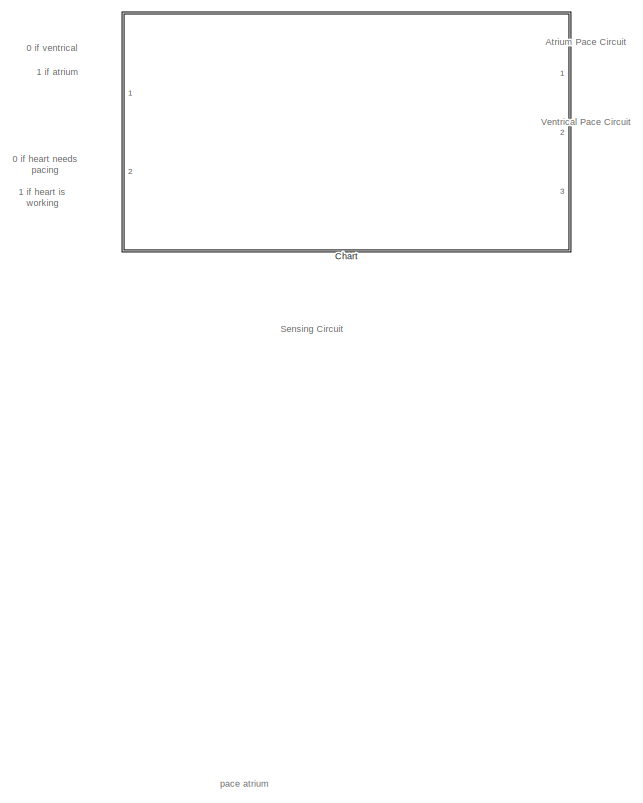
[diagram: root canvas - part 1/2, top center region]
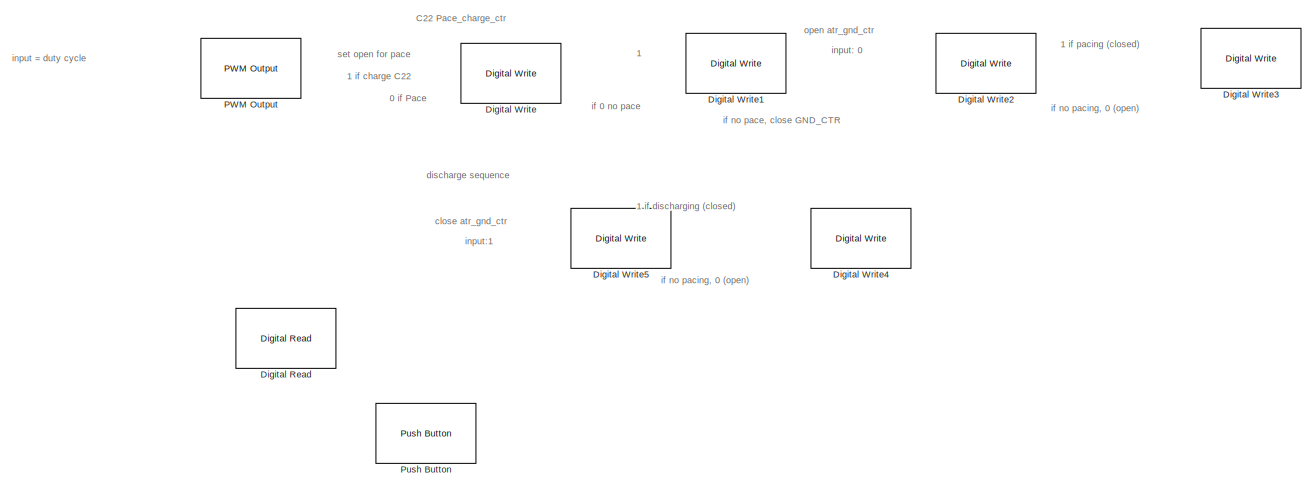
[diagram: root canvas - part 2/2, full width, bottom band]
MODEL slx_b1905c238c01
KIND model
CONFIG AbsTol = auto
CONFIG EnableMultiTasking = on
CONFIG FixedStep = 1e-3
CONFIG MaxStep = auto
CONFIG MinStep = auto
CONFIG RelTol = 1e-3
CONFIG SampleTimeConstraint = Unconstrained
CONFIG Solver = FixedStepAuto
CONFIG SolverName = FixedStepAuto
CONFIG StartTime = 0.0
CONFIG StopTime = 10.0
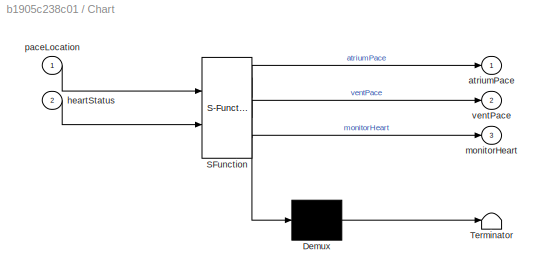
BLOCK [SubSystem] Chart
  ErrorFcn = Stateflow.Translate.translate
  PermitHierarchicalResolution = ExplicitOnly
  Ports = [2, 3]
  RequestExecContextInheritance = off
  SFBlockType = Chart
  TreatAsAtomicUnit = on
BLOCK [Demux] Chart/ Demux 
  Outputs = 1
  Ports = [1, 1]
BLOCK [S-Function] Chart/ SFunction 
  EnableBusSupport = on
  FunctionName = sf_sfun
  PortCounts = [2 4]
  Ports = [2, 4]
  SFcnIsStateOwnerBlock = off
  SFunctionDeploymentMode = off
  Tag = Stateflow S-Function 3
BLOCK [Terminator] Chart/ Terminator 
BLOCK [Outport] Chart/atriumPace
BLOCK [Inport] Chart/heartStatus
  Port = 2
BLOCK [Outport] Chart/monitorHeart
  Port = 3
BLOCK [Inport] Chart/paceLocation
BLOCK [Outport] Chart/ventPace
  Port = 2
BLOCK [Reference] Digital Read  REF=frdmk64flib/Digital Read
  Ports = [0, 1]
  SourceBlock = frdmk64flib/Digital Read
  SourceProductBaseCode = EC_FRDM_K64F
  SourceType = freedomk64f.DigitalRead
BLOCK [Reference] Digital Write  REF=frdmk64flib/Digital Write
  Ports = [1]
  SourceBlock = frdmk64flib/Digital Write
  SourceProductBaseCode = EC_FRDM_K64F
  SourceType = freedomk64f.DigitalWrite
BLOCK [Reference] Digital Write1  REF=frdmk64flib/Digital Write
  Ports = [1]
  SourceBlock = frdmk64flib/Digital Write
  SourceProductBaseCode = EC_FRDM_K64F
  SourceType = freedomk64f.DigitalWrite
BLOCK [Reference] Digital Write2  REF=frdmk64flib/Digital Write
  Ports = [1]
  SourceBlock = frdmk64flib/Digital Write
  SourceProductBaseCode = EC_FRDM_K64F
  SourceType = freedomk64f.DigitalWrite
BLOCK [Reference] Digital Write3  REF=frdmk64flib/Digital Write
  Ports = [1]
  SourceBlock = frdmk64flib/Digital Write
  SourceProductBaseCode = EC_FRDM_K64F
  SourceType = freedomk64f.DigitalWrite
BLOCK [Reference] Digital Write4  REF=frdmk64flib/Digital Write
  Ports = [1]
  SourceBlock = frdmk64flib/Digital Write
  SourceProductBaseCode = EC_FRDM_K64F
  SourceType = freedomk64f.DigitalWrite
BLOCK [Reference] Digital Write5  REF=frdmk64flib/Digital Write
  Ports = [1]
  SourceBlock = frdmk64flib/Digital Write
  SourceProductBaseCode = EC_FRDM_K64F
  SourceType = freedomk64f.DigitalWrite
BLOCK [Reference] PWM Output  REF=frdmk64flib/PWM Output
  Ports = [1]
  SourceBlock = frdmk64flib/PWM Output
  SourceProductBaseCode = EC_FRDM_K64F
  SourceType = freedomk64f.PWMOutput
BLOCK [Reference] Push Button  REF=frdmk64flib/Push Button
  Ports = [0, 1]
  SourceBlock = frdmk64flib/Push Button
  SourceProductBaseCode = EC_FRDM_K64F
  SourceType = freedomk64f.PushButton
ANNOTATION (root): 0 if Pace
ANNOTATION (root): 0 if heart needs pacing
ANNOTATION (root): 0 if ventrical
ANNOTATION (root): 1
ANNOTATION (root): 1 if atrium
ANNOTATION (root): 1 if charge C22
ANNOTATION (root): 1 if discharging (closed)
ANNOTATION (root): 1 if heart is working
ANNOTATION (root): 1 if pacing (closed)
ANNOTATION (root): Ventrical Pace Circuit
ANNOTATION (root): Atrium Pace Circuit
ANNOTATION (root): C22 Pace_charge_ctr
ANNOTATION (root): Sensing Circuit
ANNOTATION (root): close atr_gnd_ctr
ANNOTATION (root): discharge sequence
ANNOTATION (root): if 0 no pace
ANNOTATION (root): if no pace, close GND_CTR
ANNOTATION (root): if no pacing, 0 (open)
ANNOTATION (root): input = duty cycle
ANNOTATION (root): input: 0
ANNOTATION (root): input:1
ANNOTATION (root): open atr_gnd_ctr
ANNOTATION (root): pace atrium
ANNOTATION (root): set open for pace
CHART Chart states=3 transitions=6
  STATE_LABEL 'HEART_MONITORING\nentry:\nmonitorHeart = True;\nventPace = False;\natriumPace = False;\n'
  STATE_LABEL 'VENTRICAL_PACE\nentry:\nmonitorHeart = False;\natriumPace = False;\nventPace = True;'
  STATE_LABEL 'ATRIUM_PACE\nentry:\nmonitorHeart = False;\natriumPace = True;\nventPace = False;'
CHART  states=0 transitions=0
